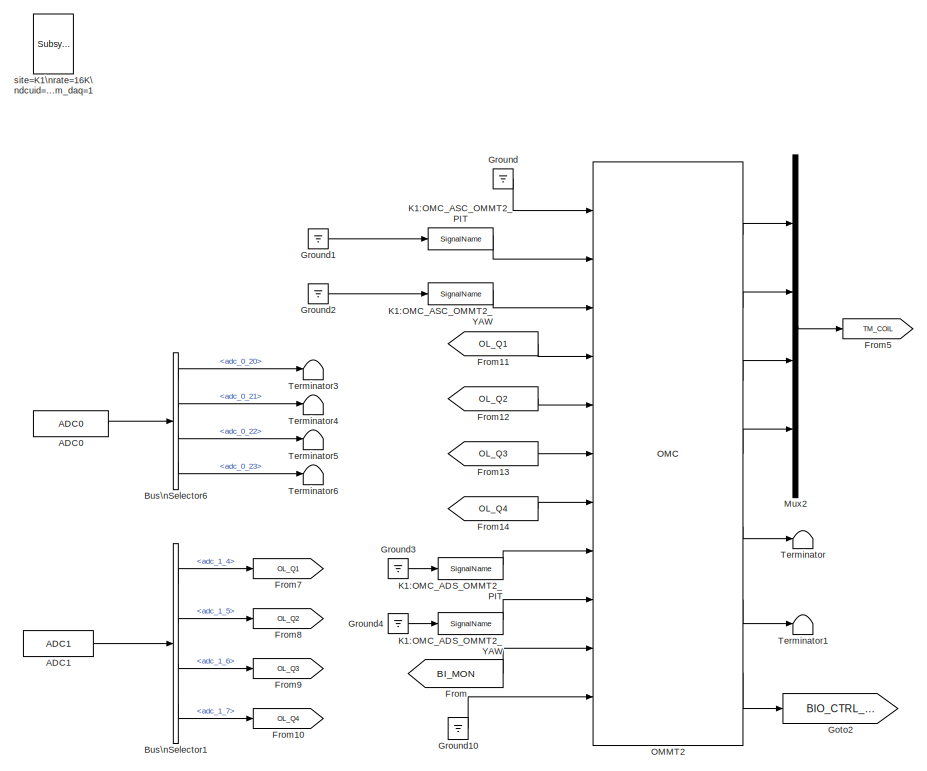
[diagram: root canvas - part 1/2, full width, middle band]
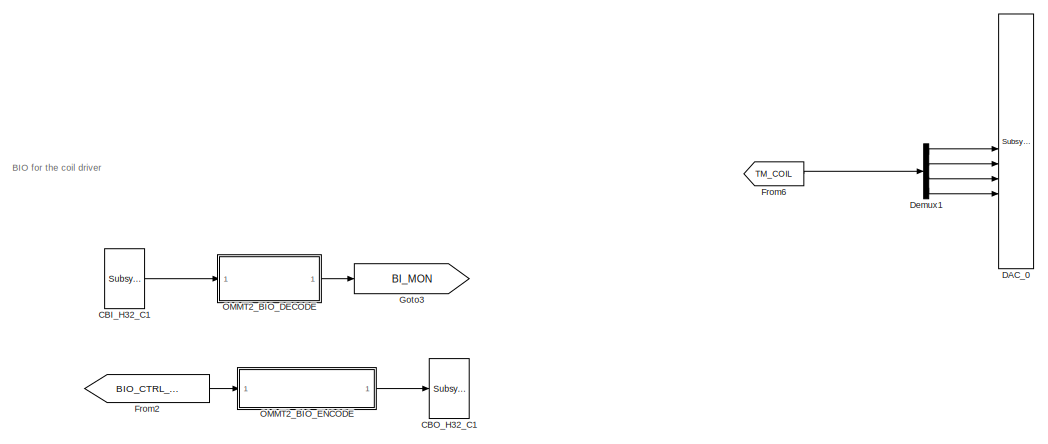
[diagram: root canvas - part 2/2, full width, bottom band]
MODEL k1visommt2
KIND model
BLOCK [Reference] ADC0  REF=cdsAdcx0/ADC0
  AttributesFormatString = %<Description>\\n%<Tag>
  Description = type-GSC_16AI64SSA\ncard_num=0
  Ports = [0, 1]
  SID = 377
  SourceBlock = cdsAdcx0/ADC0
  SourceType = SubSystem
  Tag = cdsAdc
BLOCK [Reference] ADC1  REF=cdsAdcx1/ADC1
  AttributesFormatString = %<Description>\\n%<Tag>
  Description = type-GSC_16AI64SSA\ncard_num=1
  Ports = [0, 1]
  SID = 514
  SourceBlock = cdsAdcx1/ADC1
  SourceType = SubSystem
  Tag = cdsAdc
BLOCK [BusSelector] Bus\nSelector1
  AttributesFormatString = %<Description>
  Description = ADC Selector
  OutputSignals = adc_1_4,adc_1_5,adc_1_6,adc_1_7
  Ports = [1, 4]
  SID = 515
BLOCK [BusSelector] Bus\nSelector6
  AttributesFormatString = %<Description>
  Description = ADC Selector
  OutputSignals = adc_0_20,adc_0_21,adc_0_22,adc_0_23
  Ports = [1, 4]
  SID = 284
BLOCK [Reference] CBI_H32_C1  REF=cdsCDI64/Subsystem
  AttributesFormatString = %<Tag>\\n%<Description>
  Description = card_num=3
  Ports = [0, 1]
  SID = 708
  SourceBlock = cdsCDI64/Subsystem
  SourceType = SubSystem
  Tag = cdsCDI64
BLOCK [Reference] CBO_H32_C1  REF=cdsCDO64/Subsystem
  AttributesFormatString = %<Tag>\\n%<Description>
  Description = card_num=3
  Ports = [1]
  SID = 709
  SourceBlock = cdsCDO64/Subsystem
  SourceType = SubSystem
  Tag = cdsCDO64
BLOCK [Reference] DAC_0  REF=dac/Subsystem  (lib defined in slx_40ef132df75b, slx_b7657ccccc5b, +4 more)
  AttributesFormatString = %<Description>
  Description = type=GSC_16AO16,\ncard_num=0
  Ports = [16]
  SID = 707
  SourceBlock = dac/Subsystem
  SourceType = SubSystem
BLOCK [Demux] Demux1
  DisplayOption = bar
  Ports = [1, 4]
  SID = 444
BLOCK [From] From
  GotoTag = BI_MON
  SID = 510
BLOCK [Goto] From10
  GotoTag = OL_Q4
  SID = 408
BLOCK [From] From11
  GotoTag = OL_Q1
  SID = 403
BLOCK [From] From12
  GotoTag = OL_Q2
  SID = 404
BLOCK [From] From13
  GotoTag = OL_Q3
  SID = 405
BLOCK [From] From14
  GotoTag = OL_Q4
  SID = 406
BLOCK [From] From2
  GotoTag = BIO_CTRL_OUT
  SID = 508
BLOCK [Goto] From5
  GotoTag = TM_COIL
  SID = 412
BLOCK [From] From6
  GotoTag = TM_COIL
  SID = 415
BLOCK [Goto] From7
  GotoTag = OL_Q1
  SID = 409
BLOCK [Goto] From8
  GotoTag = OL_Q2
  SID = 410
BLOCK [Goto] From9
  GotoTag = OL_Q3
  SID = 411
BLOCK [Goto] Goto2
  GotoTag = BIO_CTRL_OUT
  SID = 511
BLOCK [Goto] Goto3
  GotoTag = BI_MON
  SID = 509
BLOCK [Ground] Ground
  SID = 321
BLOCK [Ground] Ground1
  SID = 710
BLOCK [Ground] Ground10
  SID = 394
BLOCK [Ground] Ground2
  SID = 711
BLOCK [Ground] Ground3
  SID = 718
BLOCK [Ground] Ground4
  SID = 719
BLOCK [Reference] K1:OMC_ADS_OMMT2_PIT  REF=cdsIPCx/SignalName
  AttributesFormatString = %<Tag>
  Description = Inter-Process Communication via Shared memory.
  Ports = [1, 2]
  SID = 724
  SourceBlock = cdsIPCx/SignalName
  SourceType = SubSystem
  Tag = cdsIPCx_SHMEM
BLOCK [Reference] K1:OMC_ADS_OMMT2_YAW  REF=cdsIPCx/SignalName
  AttributesFormatString = %<Tag>
  Description = Inter-Process Communication via Shared memory.
  Ports = [1, 2]
  SID = 725
  SourceBlock = cdsIPCx/SignalName
  SourceType = SubSystem
  Tag = cdsIPCx_SHMEM
BLOCK [Reference] K1:OMC_ASC_OMMT2_PIT  REF=cdsIPCx/SignalName
  AttributesFormatString = %<Tag>
  Description = Inter-Process Communication via Shared memory.
  Ports = [1, 2]
  SID = 726
  SourceBlock = cdsIPCx/SignalName
  SourceType = SubSystem
  Tag = cdsIPCx_SHMEM
BLOCK [Reference] K1:OMC_ASC_OMMT2_YAW  REF=cdsIPCx/SignalName
  AttributesFormatString = %<Tag>
  Description = Inter-Process Communication via Shared memory.
  Ports = [1, 2]
  SID = 727
  SourceBlock = cdsIPCx/SignalName
  SourceType = SubSystem
  Tag = cdsIPCx_SHMEM
BLOCK [Mux] Mux2
  DisplayOption = bar
  Ports = [4, 1]
  SID = 413
BLOCK [Reference] OMMT2  REF=TYPEC_SINGLE_MASTER/OMC
  AttributesFormatString = %<Description>
  Description = TYPEC SINGLE MASTER
  Ports = [11, 7]
  SID = 729
  SourceBlock = TYPEC_SINGLE_MASTER/OMC
  SourceType = SubSystem
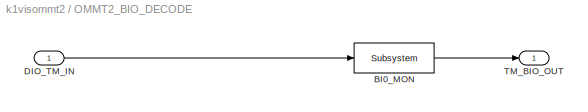
BLOCK [SubSystem] OMMT2_BIO_DECODE
  Ports = [1, 1]
  RequestExecContextInheritance = off
  SID = 456
  Variant = off
BLOCK [Reference] OMMT2_BIO_DECODE/BI0_MON  REF=cdsEpicsOut/Subsystem
  AttributesFormatString = %<Tag>
  Description = Purpose:                                          \nOutput a FE signal to an EPICS channel.           \n                                                  \nOperation:                                        \nTakes input value and passes it to EPICS record.  \n                                                  \nUsage:                                            \nName the part with the desired EPICS...<+14ch>
  Ports = [1, 1]
  SID = 458
  SourceBlock = cdsEpicsOut/Subsystem
  SourceType = SubSystem
  Tag = cdsEpicsOutput
BLOCK [Inport] OMMT2_BIO_DECODE/DIO_TM_IN
  IconDisplay = Port number
  SID = 457
BLOCK [Outport] OMMT2_BIO_DECODE/TM_BIO_OUT
  IconDisplay = Port number
  SID = 459
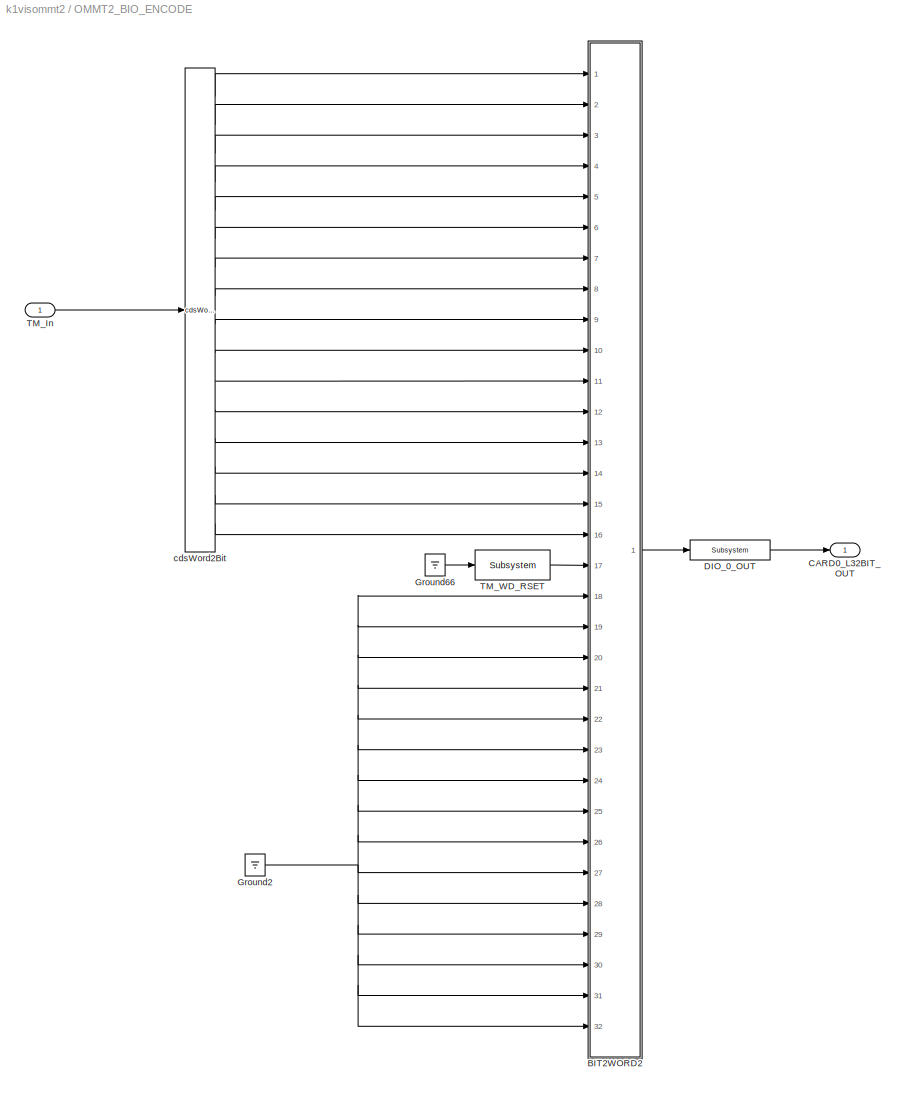
BLOCK [SubSystem] OMMT2_BIO_ENCODE
  Ports = [1, 1]
  RequestExecContextInheritance = off
  SID = 460
  Variant = off
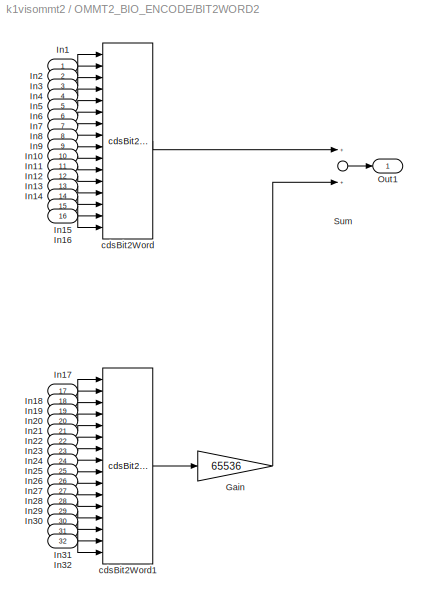
BLOCK [SubSystem] OMMT2_BIO_ENCODE/BIT2WORD2
  Ports = [32, 1]
  RequestExecContextInheritance = off
  SID = 462
  Variant = off
BLOCK [Gain] OMMT2_BIO_ENCODE/BIT2WORD2/Gain
  Gain = 65536
  OutDataTypeStr = Inherit: Inherit via internal rule
  ParamDataTypeStr = Inherit: Inherit via internal rule
  SID = 495
  SaturateOnIntegerOverflow = off
BLOCK [Inport] OMMT2_BIO_ENCODE/BIT2WORD2/In1
  IconDisplay = Port number
  SID = 463
BLOCK [Inport] OMMT2_BIO_ENCODE/BIT2WORD2/In10
  IconDisplay = Port number
  Port = 10
  SID = 472
BLOCK [Inport] OMMT2_BIO_ENCODE/BIT2WORD2/In11
  IconDisplay = Port number
  Port = 11
  SID = 473
BLOCK [Inport] OMMT2_BIO_ENCODE/BIT2WORD2/In12
  IconDisplay = Port number
  Port = 12
  SID = 474
BLOCK [Inport] OMMT2_BIO_ENCODE/BIT2WORD2/In13
  IconDisplay = Port number
  Port = 13
  SID = 475
BLOCK [Inport] OMMT2_BIO_ENCODE/BIT2WORD2/In14
  IconDisplay = Port number
  Port = 14
  SID = 476
BLOCK [Inport] OMMT2_BIO_ENCODE/BIT2WORD2/In15
  IconDisplay = Port number
  Port = 15
  SID = 477
BLOCK [Inport] OMMT2_BIO_ENCODE/BIT2WORD2/In16
  IconDisplay = Port number
  Port = 16
  SID = 478
BLOCK [Inport] OMMT2_BIO_ENCODE/BIT2WORD2/In17
  IconDisplay = Port number
  Port = 17
  SID = 479
BLOCK [Inport] OMMT2_BIO_ENCODE/BIT2WORD2/In18
  IconDisplay = Port number
  Port = 18
  SID = 480
BLOCK [Inport] OMMT2_BIO_ENCODE/BIT2WORD2/In19
  IconDisplay = Port number
  Port = 19
  SID = 481
BLOCK [Inport] OMMT2_BIO_ENCODE/BIT2WORD2/In2
  IconDisplay = Port number
  Port = 2
  SID = 464
BLOCK [Inport] OMMT2_BIO_ENCODE/BIT2WORD2/In20
  IconDisplay = Port number
  Port = 20
  SID = 482
BLOCK [Inport] OMMT2_BIO_ENCODE/BIT2WORD2/In21
  IconDisplay = Port number
  Port = 21
  SID = 483
BLOCK [Inport] OMMT2_BIO_ENCODE/BIT2WORD2/In22
  IconDisplay = Port number
  Port = 22
  SID = 484
BLOCK [Inport] OMMT2_BIO_ENCODE/BIT2WORD2/In23
  IconDisplay = Port number
  Port = 23
  SID = 485
BLOCK [Inport] OMMT2_BIO_ENCODE/BIT2WORD2/In24
  IconDisplay = Port number
  Port = 24
  SID = 486
BLOCK [Inport] OMMT2_BIO_ENCODE/BIT2WORD2/In25
  IconDisplay = Port number
  Port = 25
  SID = 487
BLOCK [Inport] OMMT2_BIO_ENCODE/BIT2WORD2/In26
  IconDisplay = Port number
  Port = 26
  SID = 488
BLOCK [Inport] OMMT2_BIO_ENCODE/BIT2WORD2/In27
  IconDisplay = Port number
  Port = 27
  SID = 489
BLOCK [Inport] OMMT2_BIO_ENCODE/BIT2WORD2/In28
  IconDisplay = Port number
  Port = 28
  SID = 490
BLOCK [Inport] OMMT2_BIO_ENCODE/BIT2WORD2/In29
  IconDisplay = Port number
  Port = 29
  SID = 491
BLOCK [Inport] OMMT2_BIO_ENCODE/BIT2WORD2/In3
  IconDisplay = Port number
  Port = 3
  SID = 465
BLOCK [Inport] OMMT2_BIO_ENCODE/BIT2WORD2/In30
  IconDisplay = Port number
  Port = 30
  SID = 492
BLOCK [Inport] OMMT2_BIO_ENCODE/BIT2WORD2/In31
  IconDisplay = Port number
  Port = 31
  SID = 493
BLOCK [Inport] OMMT2_BIO_ENCODE/BIT2WORD2/In32
  IconDisplay = Port number
  Port = 32
  SID = 494
BLOCK [Inport] OMMT2_BIO_ENCODE/BIT2WORD2/In4
  IconDisplay = Port number
  Port = 4
  SID = 466
BLOCK [Inport] OMMT2_BIO_ENCODE/BIT2WORD2/In5
  IconDisplay = Port number
  Port = 5
  SID = 467
BLOCK [Inport] OMMT2_BIO_ENCODE/BIT2WORD2/In6
  IconDisplay = Port number
  Port = 6
  SID = 468
BLOCK [Inport] OMMT2_BIO_ENCODE/BIT2WORD2/In7
  IconDisplay = Port number
  Port = 7
  SID = 469
BLOCK [Inport] OMMT2_BIO_ENCODE/BIT2WORD2/In8
  IconDisplay = Port number
  Port = 8
  SID = 470
BLOCK [Inport] OMMT2_BIO_ENCODE/BIT2WORD2/In9
  IconDisplay = Port number
  Port = 9
  SID = 471
BLOCK [Outport] OMMT2_BIO_ENCODE/BIT2WORD2/Out1
  IconDisplay = Port number
  SID = 499
BLOCK [Sum] OMMT2_BIO_ENCODE/BIT2WORD2/Sum
  InputSameDT = off
  OutDataTypeStr = Inherit: Inherit via internal rule
  Ports = [2, 1]
  SID = 496
  SaturateOnIntegerOverflow = off
BLOCK [Reference] OMMT2_BIO_ENCODE/BIT2WORD2/cdsBit2Word  REF=cdsBit2Word/cdsBit2Word
  AttributesFormatString = %<Tag>
  Description = Forms single 16 bit integer from 16 0/1 inputs.
  Ports = [16, 1]
  SID = 497
  SourceBlock = cdsBit2Word/cdsBit2Word
  SourceType = SubSystem
  Tag = cdsBit2Word
BLOCK [Reference] OMMT2_BIO_ENCODE/BIT2WORD2/cdsBit2Word1  REF=cdsBit2Word/cdsBit2Word
  AttributesFormatString = %<Tag>
  Description = Forms single 16 bit integer from 16 0/1 inputs.
  Ports = [16, 1]
  SID = 498
  SourceBlock = cdsBit2Word/cdsBit2Word
  SourceType = SubSystem
  Tag = cdsBit2Word
BLOCK [Outport] OMMT2_BIO_ENCODE/CARD0_L32BIT_OUT
  IconDisplay = Port number
  SID = 505
BLOCK [Reference] OMMT2_BIO_ENCODE/DIO_0_OUT  REF=cdsEpicsOut/Subsystem
  AttributesFormatString = %<Tag>
  Description = Purpose:                                          \nOutput a FE signal to an EPICS channel.           \n                                                  \nOperation:                                        \nTakes input value and passes it to EPICS record.  \n                                                  \nUsage:                                            \nName the part with the desired EPICS...<+14ch>
  Ports = [1, 1]
  SID = 500
  SourceBlock = cdsEpicsOut/Subsystem
  SourceType = SubSystem
  Tag = cdsEpicsOutput
BLOCK [Ground] OMMT2_BIO_ENCODE/Ground2
  SID = 501
BLOCK [Ground] OMMT2_BIO_ENCODE/Ground66
  SID = 502
BLOCK [Inport] OMMT2_BIO_ENCODE/TM_In
  IconDisplay = Port number
  SID = 461
BLOCK [Reference] OMMT2_BIO_ENCODE/TM_WD_RSET  REF=cdsEpicsBinIn/Subsystem
  AttributesFormatString = %<Tag>
  Description = Purpose:                                                                            \nCreate an EPICS binary (0 or 1) input channel to the FE realtime controls.          \n                                                                                    \nOperation:                                                                          \nOutputs value from an EPICS ai record. Value is binary i...<+252ch>
  Ports = [1, 1]
  SID = 503
  SourceBlock = cdsEpicsBinIn/Subsystem
  SourceType = SubSystem
  Tag = cdsEpicsBinIn
BLOCK [Reference] OMMT2_BIO_ENCODE/cdsWord2Bit  REF=cdsWord2Bit/cdsWord2Bit
  AttributesFormatString = cdsWord2Bit
  Description = Generate 16 0/1 outputs from single 16-bit integer input
  Ports = [1, 16]
  SID = 504
  SourceBlock = cdsWord2Bit/cdsWord2Bit
  SourceType = SubSystem
  Tag = cdsWord2Bit
BLOCK [Terminator] Terminator
  SID = 435
BLOCK [Terminator] Terminator1
  SID = 436
BLOCK [Terminator] Terminator3
  SID = 703
BLOCK [Terminator] Terminator4
  SID = 704
BLOCK [Terminator] Terminator5
  SID = 705
BLOCK [Terminator] Terminator6
  SID = 706
BLOCK [Reference] site=K1\nrate=16K\ndcuid=81\nhost=k1omc0\nspecific_cpu=3\nadcSlave=1\nshmem_daq=1  REF=cdsParameters/Subsystem
  AttributesFormatString = %<Tag>
  Description = Purpose:                                                                                                                                                                                                                                \nProvide system parameters to the FE code generator to properly configure the generated EPICS names, rep rate of the FE controller, and the Data Acquisition node ID fo...<+2934ch>
  Ports = []
  SID = 336
  SourceBlock = cdsParameters/Subsystem
  SourceType = SubSystem
  Tag = cdsParameters
ANNOTATION (root): \n \n BIO for the coil driver
LINE ADC0:1 -> Bus\nSelector6:1
LINE ADC1:1 -> Bus\nSelector1:1
LINE Bus\nSelector1:1 -> From7:1
LINE Bus\nSelector1:2 -> From8:1
LINE Bus\nSelector1:3 -> From9:1
LINE Bus\nSelector1:4 -> From10:1
LINE Bus\nSelector6:1 -> Terminator3:1
LINE Bus\nSelector6:2 -> Terminator4:1
LINE Bus\nSelector6:3 -> Terminator5:1
LINE Bus\nSelector6:4 -> Terminator6:1
LINE CBI_H32_C1:1 -> OMMT2_BIO_DECODE:1
LINE Demux1:1 -> DAC_0:9
LINE Demux1:2 -> DAC_0:10
LINE Demux1:3 -> DAC_0:11
LINE Demux1:4 -> DAC_0:12
LINE From11:1 -> OMMT2:4
LINE From12:1 -> OMMT2:5
LINE From13:1 -> OMMT2:6
LINE From14:1 -> OMMT2:7
LINE From2:1 -> OMMT2_BIO_ENCODE:1
LINE From6:1 -> Demux1:1
LINE From:1 -> OMMT2:10
LINE Ground10:1 -> OMMT2:11
LINE Ground1:1 -> K1:OMC_ASC_OMMT2_PIT:1
LINE Ground2:1 -> K1:OMC_ASC_OMMT2_YAW:1
LINE Ground3:1 -> K1:OMC_ADS_OMMT2_PIT:1
LINE Ground4:1 -> K1:OMC_ADS_OMMT2_YAW:1
LINE Ground:1 -> OMMT2:1
LINE K1:OMC_ADS_OMMT2_PIT:1 -> OMMT2:8
LINE K1:OMC_ADS_OMMT2_YAW:1 -> OMMT2:9
LINE K1:OMC_ASC_OMMT2_PIT:1 -> OMMT2:2
LINE K1:OMC_ASC_OMMT2_YAW:1 -> OMMT2:3
LINE Mux2:1 -> From5:1
LINE OMMT2:1 -> Mux2:1
LINE OMMT2:2 -> Mux2:2
LINE OMMT2:3 -> Mux2:3
LINE OMMT2:4 -> Mux2:4
LINE OMMT2:5 -> Terminator:1
LINE OMMT2:6 -> Terminator1:1
LINE OMMT2:7 -> Goto2:1
LINE OMMT2_BIO_DECODE/BI0_MON:1 -> OMMT2_BIO_DECODE/TM_BIO_OUT:1
LINE OMMT2_BIO_DECODE/DIO_TM_IN:1 -> OMMT2_BIO_DECODE/BI0_MON:1
LINE OMMT2_BIO_DECODE:1 -> Goto3:1
LINE OMMT2_BIO_ENCODE/BIT2WORD2/Gain:1 -> OMMT2_BIO_ENCODE/BIT2WORD2/Sum:2
LINE OMMT2_BIO_ENCODE/BIT2WORD2/In10:1 -> OMMT2_BIO_ENCODE/BIT2WORD2/cdsBit2Word:10
LINE OMMT2_BIO_ENCODE/BIT2WORD2/In11:1 -> OMMT2_BIO_ENCODE/BIT2WORD2/cdsBit2Word:11
LINE OMMT2_BIO_ENCODE/BIT2WORD2/In12:1 -> OMMT2_BIO_ENCODE/BIT2WORD2/cdsBit2Word:12
LINE OMMT2_BIO_ENCODE/BIT2WORD2/In13:1 -> OMMT2_BIO_ENCODE/BIT2WORD2/cdsBit2Word:13
LINE OMMT2_BIO_ENCODE/BIT2WORD2/In14:1 -> OMMT2_BIO_ENCODE/BIT2WORD2/cdsBit2Word:14
LINE OMMT2_BIO_ENCODE/BIT2WORD2/In15:1 -> OMMT2_BIO_ENCODE/BIT2WORD2/cdsBit2Word:15
LINE OMMT2_BIO_ENCODE/BIT2WORD2/In16:1 -> OMMT2_BIO_ENCODE/BIT2WORD2/cdsBit2Word:16
LINE OMMT2_BIO_ENCODE/BIT2WORD2/In17:1 -> OMMT2_BIO_ENCODE/BIT2WORD2/cdsBit2Word1:1
LINE OMMT2_BIO_ENCODE/BIT2WORD2/In18:1 -> OMMT2_BIO_ENCODE/BIT2WORD2/cdsBit2Word1:2
LINE OMMT2_BIO_ENCODE/BIT2WORD2/In19:1 -> OMMT2_BIO_ENCODE/BIT2WORD2/cdsBit2Word1:3
LINE OMMT2_BIO_ENCODE/BIT2WORD2/In1:1 -> OMMT2_BIO_ENCODE/BIT2WORD2/cdsBit2Word:1
LINE OMMT2_BIO_ENCODE/BIT2WORD2/In20:1 -> OMMT2_BIO_ENCODE/BIT2WORD2/cdsBit2Word1:4
LINE OMMT2_BIO_ENCODE/BIT2WORD2/In21:1 -> OMMT2_BIO_ENCODE/BIT2WORD2/cdsBit2Word1:5
LINE OMMT2_BIO_ENCODE/BIT2WORD2/In22:1 -> OMMT2_BIO_ENCODE/BIT2WORD2/cdsBit2Word1:6
LINE OMMT2_BIO_ENCODE/BIT2WORD2/In23:1 -> OMMT2_BIO_ENCODE/BIT2WORD2/cdsBit2Word1:7
LINE OMMT2_BIO_ENCODE/BIT2WORD2/In24:1 -> OMMT2_BIO_ENCODE/BIT2WORD2/cdsBit2Word1:8
LINE OMMT2_BIO_ENCODE/BIT2WORD2/In25:1 -> OMMT2_BIO_ENCODE/BIT2WORD2/cdsBit2Word1:9
LINE OMMT2_BIO_ENCODE/BIT2WORD2/In26:1 -> OMMT2_BIO_ENCODE/BIT2WORD2/cdsBit2Word1:10
LINE OMMT2_BIO_ENCODE/BIT2WORD2/In27:1 -> OMMT2_BIO_ENCODE/BIT2WORD2/cdsBit2Word1:11
LINE OMMT2_BIO_ENCODE/BIT2WORD2/In28:1 -> OMMT2_BIO_ENCODE/BIT2WORD2/cdsBit2Word1:12
LINE OMMT2_BIO_ENCODE/BIT2WORD2/In29:1 -> OMMT2_BIO_ENCODE/BIT2WORD2/cdsBit2Word1:13
LINE OMMT2_BIO_ENCODE/BIT2WORD2/In2:1 -> OMMT2_BIO_ENCODE/BIT2WORD2/cdsBit2Word:2
LINE OMMT2_BIO_ENCODE/BIT2WORD2/In30:1 -> OMMT2_BIO_ENCODE/BIT2WORD2/cdsBit2Word1:14
LINE OMMT2_BIO_ENCODE/BIT2WORD2/In31:1 -> OMMT2_BIO_ENCODE/BIT2WORD2/cdsBit2Word1:15
LINE OMMT2_BIO_ENCODE/BIT2WORD2/In32:1 -> OMMT2_BIO_ENCODE/BIT2WORD2/cdsBit2Word1:16
LINE OMMT2_BIO_ENCODE/BIT2WORD2/In3:1 -> OMMT2_BIO_ENCODE/BIT2WORD2/cdsBit2Word:3
LINE OMMT2_BIO_ENCODE/BIT2WORD2/In4:1 -> OMMT2_BIO_ENCODE/BIT2WORD2/cdsBit2Word:4
LINE OMMT2_BIO_ENCODE/BIT2WORD2/In5:1 -> OMMT2_BIO_ENCODE/BIT2WORD2/cdsBit2Word:5
LINE OMMT2_BIO_ENCODE/BIT2WORD2/In6:1 -> OMMT2_BIO_ENCODE/BIT2WORD2/cdsBit2Word:6
LINE OMMT2_BIO_ENCODE/BIT2WORD2/In7:1 -> OMMT2_BIO_ENCODE/BIT2WORD2/cdsBit2Word:7
LINE OMMT2_BIO_ENCODE/BIT2WORD2/In8:1 -> OMMT2_BIO_ENCODE/BIT2WORD2/cdsBit2Word:8
LINE OMMT2_BIO_ENCODE/BIT2WORD2/In9:1 -> OMMT2_BIO_ENCODE/BIT2WORD2/cdsBit2Word:9
LINE OMMT2_BIO_ENCODE/BIT2WORD2/Sum:1 -> OMMT2_BIO_ENCODE/BIT2WORD2/Out1:1
LINE OMMT2_BIO_ENCODE/BIT2WORD2/cdsBit2Word1:1 -> OMMT2_BIO_ENCODE/BIT2WORD2/Gain:1
LINE OMMT2_BIO_ENCODE/BIT2WORD2/cdsBit2Word:1 -> OMMT2_BIO_ENCODE/BIT2WORD2/Sum:1
LINE OMMT2_BIO_ENCODE/BIT2WORD2:1 -> OMMT2_BIO_ENCODE/DIO_0_OUT:1
LINE OMMT2_BIO_ENCODE/DIO_0_OUT:1 -> OMMT2_BIO_ENCODE/CARD0_L32BIT_OUT:1
NET OMMT2_BIO_ENCODE/Ground2:1 -> OMMT2_BIO_ENCODE/BIT2WORD2:18, OMMT2_BIO_ENCODE/BIT2WORD2:19, OMMT2_BIO_ENCODE/BIT2WORD2:20, OMMT2_BIO_ENCODE/BIT2WORD2:21, OMMT2_BIO_ENCODE/BIT2WORD2:22, OMMT2_BIO_ENCODE/BIT2WORD2:23, OMMT2_BIO_ENCODE/BIT2WORD2:24, OMMT2_BIO_ENCODE/BIT2WORD2:25, OMMT2_BIO_ENCODE/BIT2WORD2:26, OMMT2_BIO_ENCODE/BIT2WORD2:27, OMMT2_BIO_ENCODE/BIT2WORD2:28, OMMT2_BIO_ENCODE/BIT2WORD2:29, OMMT2_BIO_ENCODE/BIT2WORD2:30, OMMT2_BIO_ENCODE/BIT2WORD2:31, OMMT2_BIO_ENCODE/BIT2WORD2:32
LINE OMMT2_BIO_ENCODE/Ground66:1 -> OMMT2_BIO_ENCODE/TM_WD_RSET:1
LINE OMMT2_BIO_ENCODE/TM_In:1 -> OMMT2_BIO_ENCODE/cdsWord2Bit:1
LINE OMMT2_BIO_ENCODE/TM_WD_RSET:1 -> OMMT2_BIO_ENCODE/BIT2WORD2:17
LINE OMMT2_BIO_ENCODE/cdsWord2Bit:1 -> OMMT2_BIO_ENCODE/BIT2WORD2:1
LINE OMMT2_BIO_ENCODE/cdsWord2Bit:10 -> OMMT2_BIO_ENCODE/BIT2WORD2:10
LINE OMMT2_BIO_ENCODE/cdsWord2Bit:11 -> OMMT2_BIO_ENCODE/BIT2WORD2:11
LINE OMMT2_BIO_ENCODE/cdsWord2Bit:12 -> OMMT2_BIO_ENCODE/BIT2WORD2:12
LINE OMMT2_BIO_ENCODE/cdsWord2Bit:13 -> OMMT2_BIO_ENCODE/BIT2WORD2:13
LINE OMMT2_BIO_ENCODE/cdsWord2Bit:14 -> OMMT2_BIO_ENCODE/BIT2WORD2:14
LINE OMMT2_BIO_ENCODE/cdsWord2Bit:15 -> OMMT2_BIO_ENCODE/BIT2WORD2:15
LINE OMMT2_BIO_ENCODE/cdsWord2Bit:16 -> OMMT2_BIO_ENCODE/BIT2WORD2:16
LINE OMMT2_BIO_ENCODE/cdsWord2Bit:2 -> OMMT2_BIO_ENCODE/BIT2WORD2:2
LINE OMMT2_BIO_ENCODE/cdsWord2Bit:3 -> OMMT2_BIO_ENCODE/BIT2WORD2:3
LINE OMMT2_BIO_ENCODE/cdsWord2Bit:4 -> OMMT2_BIO_ENCODE/BIT2WORD2:4
LINE OMMT2_BIO_ENCODE/cdsWord2Bit:5 -> OMMT2_BIO_ENCODE/BIT2WORD2:5
LINE OMMT2_BIO_ENCODE/cdsWord2Bit:6 -> OMMT2_BIO_ENCODE/BIT2WORD2:6
LINE OMMT2_BIO_ENCODE/cdsWord2Bit:7 -> OMMT2_BIO_ENCODE/BIT2WORD2:7
LINE OMMT2_BIO_ENCODE/cdsWord2Bit:8 -> OMMT2_BIO_ENCODE/BIT2WORD2:8
LINE OMMT2_BIO_ENCODE/cdsWord2Bit:9 -> OMMT2_BIO_ENCODE/BIT2WORD2:9
LINE OMMT2_BIO_ENCODE:1 -> CBO_H32_C1:1
note: NET lines group one-source signal fan-out (src -> all destinations, sorted); 1:1 wires keep LINE
